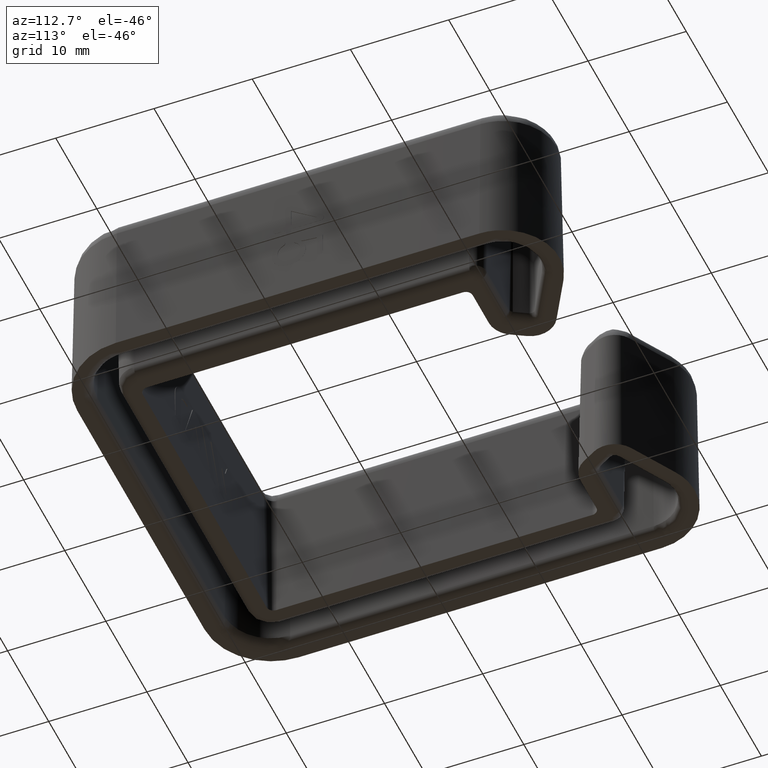
[diagram: clean part render]
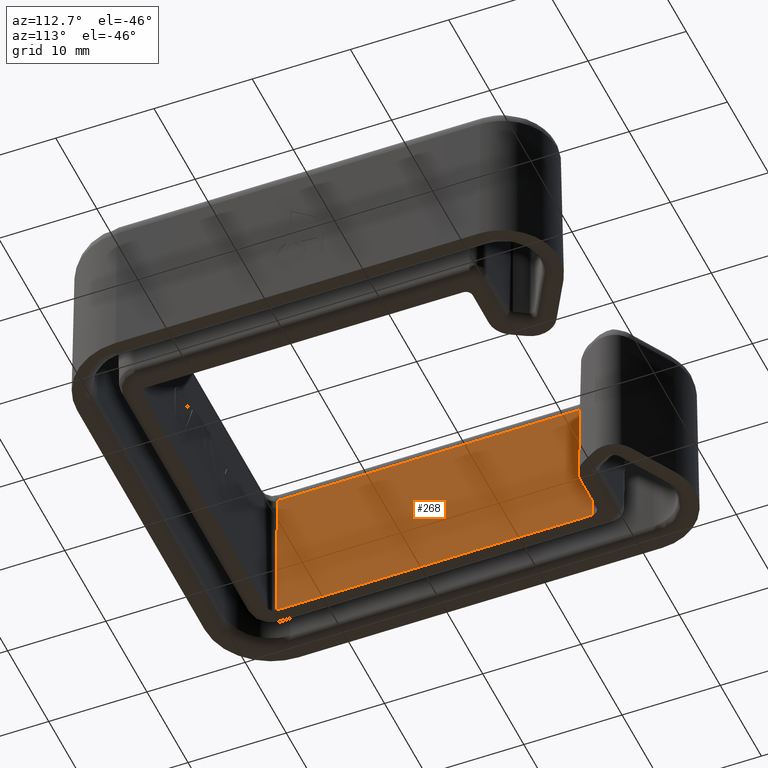
[diagram: same view with one face highlighted and labeled with its STEP entity id]
A machine part, auxiliary view. The second image highlights one B-rep face of the part: STEP entity #268.
In plain terms, the highlighted face is a freeform B-spline surface patch.
Its self-contained STEP definition (entity closure, byte-faithful):
#268=ADVANCED_FACE('',(#586),#587,.F.);
#586=FACE_OUTER_BOUND('',#1869,.T.);
#587=B_SPLINE_SURFACE_WITH_KNOTS('',1,1,((#1870,#1871),(#1872,#1873)),.UNSPECIFIED.,.F.,.F.,.F.,(2,2),(2,2),(0.0,1.0),(0.0,1.0),.UNSPECIFIED.);
#1869=EDGE_LOOP('',(#3540,#3541,#3542,#3543));
#1870=CARTESIAN_POINT('',(-15.7532638962244,4.94999999998729,5.80068169208584E-15));
#1871=CARTESIAN_POINT('',(-15.7532638962329,37.1249255972023,-1.42450409082226E-13));
#1872=CARTESIAN_POINT('',(-16.0156991359227,4.94999999998729,15.0349048128747));
#1873=CARTESIAN_POINT('',(-16.0156991359312,37.1249255972023,15.0349048128746));
#3540=ORIENTED_EDGE('',*,*,#4241,.F.);
#3541=ORIENTED_EDGE('',*,*,#4152,.F.);
#3542=ORIENTED_EDGE('',*,*,#4147,.F.);
#3543=ORIENTED_EDGE('',*,*,#4242,.F.);
#4147=EDGE_CURVE('',#4802,#4804,#4805,.F.);
#4152=EDGE_CURVE('',#4804,#4807,#4813,.T.);
#4241=EDGE_CURVE('',#4807,#4973,#4974,.F.);
#4242=EDGE_CURVE('',#4973,#4802,#4975,.T.);
#4802=VERTEX_POINT('',#6689);
#4804=VERTEX_POINT('',#6703);
#4805=B_SPLINE_CURVE_WITH_KNOTS('',1,(#6704,#6705),.UNSPECIFIED.,.F.,.F.,(2,2),(0.0,1.0),.UNSPECIFIED.);
#4807=VERTEX_POINT('',#6717);
#4813=B_SPLINE_CURVE_WITH_KNOTS('',1,(#6744,#6745),.UNSPECIFIED.,.F.,.F.,(2,2),(0.0,1.0),.UNSPECIFIED.);
#4973=VERTEX_POINT('',#7381);
#4974=B_SPLINE_CURVE_WITH_KNOTS('',1,(#7382,#7383),.UNSPECIFIED.,.F.,.F.,(2,2),(-1.0,0.0),.UNSPECIFIED.);
#4975=B_SPLINE_CURVE_WITH_KNOTS('',1,(#7384,#7385),.UNSPECIFIED.,.F.,.F.,(2,2),(0.0,1.0),.UNSPECIFIED.);
#6689=CARTESIAN_POINT('',(-15.7532638962244,4.94999999998728,3.09004288134648E-15));
#6703=CARTESIAN_POINT('',(-16.0156991359227,4.94999999998724,15.0349048128747));
#6704=CARTESIAN_POINT('',(-16.0156991359227,4.94999999998722,15.0349048128745));
#6705=CARTESIAN_POINT('',(-15.7532638962244,4.94999999998729,3.46944695195361E-15));
#6717=CARTESIAN_POINT('',(-16.0156991359312,37.1249255972023,15.0349048128747));
#6744=CARTESIAN_POINT('',(-16.0156991359227,4.94999999998722,15.0349048128745));
#6745=CARTESIAN_POINT('',(-16.0156991359312,37.1249255972022,15.0349048128745));
#7381=CARTESIAN_POINT('',(-15.753263896233,37.1249255972023,-4.63269873767575E-14));
#7382=CARTESIAN_POINT('',(-15.753263896233,37.1249255972023,3.46944695195361E-15));
#7383=CARTESIAN_POINT('',(-16.0156991359312,37.1249255972022,15.0349048128745));
#7384=CARTESIAN_POINT('',(-15.7532638962329,37.1249255972023,0.0));
#7385=CARTESIAN_POINT('',(-15.7532638962061,4.94999999998726,0.0));